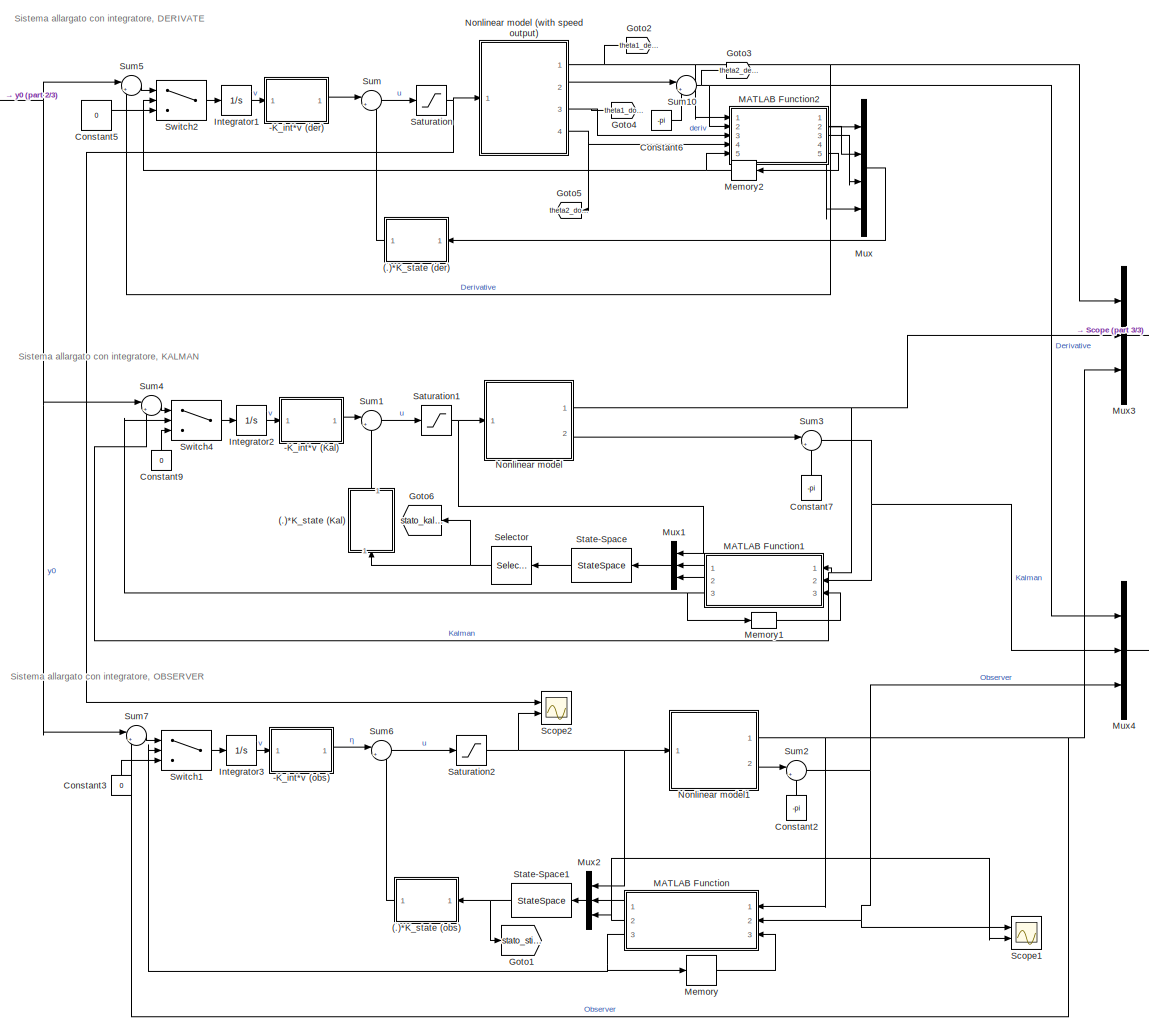
[diagram: root canvas - part 1/3, center side, full height]
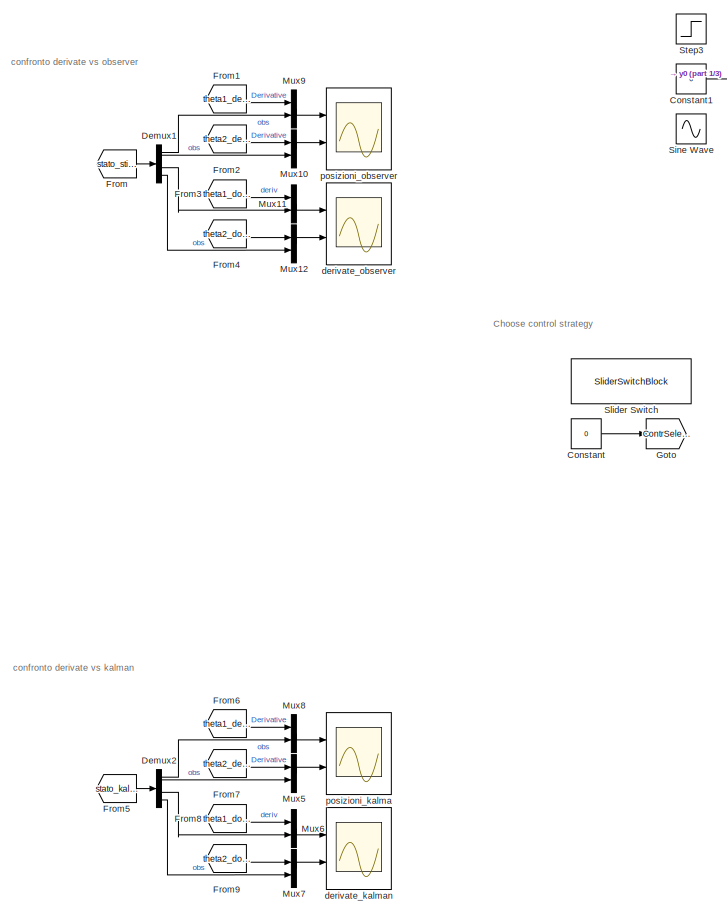
[diagram: root canvas - part 2/3, left side, full height]
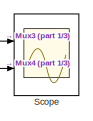
[diagram: root canvas - part 3/3, middle right region]
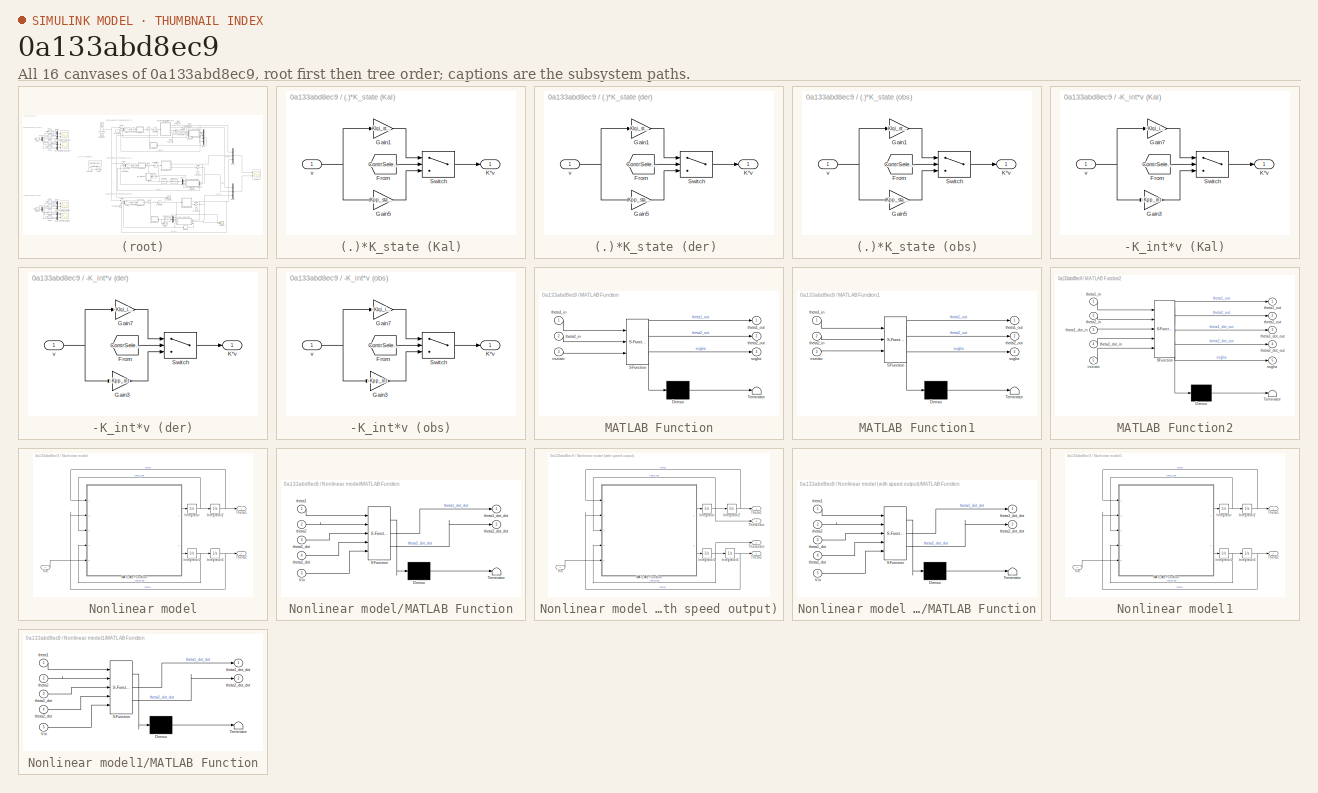
[diagram: thumbnail index - all 16 canvases of the model, root first then tree order]
MODEL slx_0a133abd8ec9
KIND model
CONFIG AbsTol = auto
CONFIG EnableMultiTasking = off
CONFIG FixedStep = 0.002
CONFIG MaxStep = auto
CONFIG MinStep = auto
CONFIG RelTol = 1e-3
CONFIG SampleTimeConstraint = Unconstrained
CONFIG Solver = FixedStepAuto
CONFIG SolverName = FixedStepAuto
CONFIG StartTime = 0.0
CONFIG StopTime = 10.0
BLOCK [SubSystem] (.)*K_state (Kal)
  Ports = [1, 1]
  RequestExecContextInheritance = off
BLOCK [From] (.)*K_state (Kal)/From
  GotoTag = ContrSelector
  TagVisibility = global
BLOCK [Gain] (.)*K_state (Kal)/Gain1
  Gain = Klqi_state
  Multiplication = Matrix(K*u)
  OutDataTypeStr = Inherit: Inherit via internal rule
  ParamDataTypeStr = Inherit: Inherit via internal rule
  SaturateOnIntegerOverflow = off
BLOCK [Gain] (.)*K_state (Kal)/Gain5
  Gain = Kpp_state
  Multiplication = Matrix(K*u)
  OutDataTypeStr = Inherit: Inherit via internal rule
  ParamDataTypeStr = Inherit: Inherit via internal rule
  SaturateOnIntegerOverflow = off
BLOCK [Outport] (.)*K_state (Kal)/K*v
  IconDisplay = Port number
BLOCK [Switch] (.)*K_state (Kal)/Switch
  Criteria = u2 > Threshold
  InputSameDT = off
  SaturateOnIntegerOverflow = off
  Threshold = 0.5
BLOCK [Inport] (.)*K_state (Kal)/v
  IconDisplay = Port number
BLOCK [SubSystem] (.)*K_state (der) 
  Ports = [1, 1]
  RequestExecContextInheritance = off
BLOCK [From] (.)*K_state (der) /From
  GotoTag = ContrSelector
  TagVisibility = global
BLOCK [Gain] (.)*K_state (der) /Gain1
  Gain = Klqi_state
  Multiplication = Matrix(K*u)
  OutDataTypeStr = Inherit: Inherit via internal rule
  ParamDataTypeStr = Inherit: Inherit via internal rule
  SaturateOnIntegerOverflow = off
BLOCK [Gain] (.)*K_state (der) /Gain5
  Gain = Kpp_state
  Multiplication = Matrix(K*u)
  OutDataTypeStr = Inherit: Inherit via internal rule
  ParamDataTypeStr = Inherit: Inherit via internal rule
  SaturateOnIntegerOverflow = off
BLOCK [Outport] (.)*K_state (der) /K*v
  IconDisplay = Port number
BLOCK [Switch] (.)*K_state (der) /Switch
  Criteria = u2 > Threshold
  InputSameDT = off
  SaturateOnIntegerOverflow = off
  Threshold = 0.5
BLOCK [Inport] (.)*K_state (der) /v
  IconDisplay = Port number
BLOCK [SubSystem] (.)*K_state (obs)
  Ports = [1, 1]
  RequestExecContextInheritance = off
BLOCK [From] (.)*K_state (obs)/From
  GotoTag = ContrSelector
  TagVisibility = global
BLOCK [Gain] (.)*K_state (obs)/Gain1
  Gain = Klqi_state
  Multiplication = Matrix(K*u)
  OutDataTypeStr = Inherit: Inherit via internal rule
  ParamDataTypeStr = Inherit: Inherit via internal rule
  SaturateOnIntegerOverflow = off
BLOCK [Gain] (.)*K_state (obs)/Gain5
  Gain = Kpp_state
  Multiplication = Matrix(K*u)
  OutDataTypeStr = Inherit: Inherit via internal rule
  ParamDataTypeStr = Inherit: Inherit via internal rule
  SaturateOnIntegerOverflow = off
BLOCK [Outport] (.)*K_state (obs)/K*v
  IconDisplay = Port number
BLOCK [Switch] (.)*K_state (obs)/Switch
  Criteria = u2 > Threshold
  InputSameDT = off
  SaturateOnIntegerOverflow = off
  Threshold = 0.5
BLOCK [Inport] (.)*K_state (obs)/v
  IconDisplay = Port number
BLOCK [SubSystem] -K_int*v (Kal)
  Ports = [1, 1]
  RequestExecContextInheritance = off
BLOCK [From] -K_int*v (Kal)/From
  GotoTag = ContrSelector
  TagVisibility = global
BLOCK [Gain] -K_int*v (Kal)/Gain3
  Gain = -Kpp_int
  Multiplication = Matrix(K*u)
  OutDataTypeStr = Inherit: Inherit via internal rule
  ParamDataTypeStr = Inherit: Inherit via internal rule
  SaturateOnIntegerOverflow = off
BLOCK [Gain] -K_int*v (Kal)/Gain7
  Gain = -Klqi_int
  Multiplication = Matrix(K*u)
  OutDataTypeStr = Inherit: Inherit via internal rule
  ParamDataTypeStr = Inherit: Inherit via internal rule
  SaturateOnIntegerOverflow = off
BLOCK [Outport] -K_int*v (Kal)/K*v
  IconDisplay = Port number
BLOCK [Switch] -K_int*v (Kal)/Switch
  Criteria = u2 > Threshold
  InputSameDT = off
  SaturateOnIntegerOverflow = off
  Threshold = 0.5
BLOCK [Inport] -K_int*v (Kal)/v
  IconDisplay = Port number
BLOCK [SubSystem] -K_int*v (der)
  Ports = [1, 1]
  RequestExecContextInheritance = off
BLOCK [From] -K_int*v (der)/From
  GotoTag = ContrSelector
  TagVisibility = global
BLOCK [Gain] -K_int*v (der)/Gain3
  Gain = -Kpp_int
  Multiplication = Matrix(K*u)
  OutDataTypeStr = Inherit: Inherit via internal rule
  ParamDataTypeStr = Inherit: Inherit via internal rule
  SaturateOnIntegerOverflow = off
BLOCK [Gain] -K_int*v (der)/Gain7
  Gain = -Klqi_int
  Multiplication = Matrix(K*u)
  OutDataTypeStr = Inherit: Inherit via internal rule
  ParamDataTypeStr = Inherit: Inherit via internal rule
  SaturateOnIntegerOverflow = off
BLOCK [Outport] -K_int*v (der)/K*v
  IconDisplay = Port number
BLOCK [Switch] -K_int*v (der)/Switch
  Criteria = u2 > Threshold
  InputSameDT = off
  SaturateOnIntegerOverflow = off
  Threshold = 0.5
BLOCK [Inport] -K_int*v (der)/v
  IconDisplay = Port number
BLOCK [SubSystem] -K_int*v (obs)
  Ports = [1, 1]
  RequestExecContextInheritance = off
BLOCK [From] -K_int*v (obs)/From
  GotoTag = ContrSelector
  TagVisibility = global
BLOCK [Gain] -K_int*v (obs)/Gain3
  Gain = -Kpp_int
  Multiplication = Matrix(K*u)
  OutDataTypeStr = Inherit: Inherit via internal rule
  ParamDataTypeStr = Inherit: Inherit via internal rule
  SaturateOnIntegerOverflow = off
BLOCK [Gain] -K_int*v (obs)/Gain7
  Gain = -Klqi_int
  Multiplication = Matrix(K*u)
  OutDataTypeStr = Inherit: Inherit via internal rule
  ParamDataTypeStr = Inherit: Inherit via internal rule
  SaturateOnIntegerOverflow = off
BLOCK [Outport] -K_int*v (obs)/K*v
  IconDisplay = Port number
BLOCK [Switch] -K_int*v (obs)/Switch
  Criteria = u2 > Threshold
  InputSameDT = off
  SaturateOnIntegerOverflow = off
  Threshold = 0.5
BLOCK [Inport] -K_int*v (obs)/v
  IconDisplay = Port number
BLOCK [Constant] Constant
  Value = 0
BLOCK [Constant] Constant1
  Value = 0
BLOCK [Constant] Constant2
  Value = -pi
BLOCK [Constant] Constant3
  Value = 0
BLOCK [Constant] Constant5
  Value = 0
BLOCK [Constant] Constant6
  Value = -pi
BLOCK [Constant] Constant7
  Value = -pi
BLOCK [Constant] Constant9
  Value = 0
BLOCK [Demux] Demux1
  DisplayOption = bar
  Ports = [1, 4]
BLOCK [Demux] Demux2
  DisplayOption = bar
  Ports = [1, 4]
BLOCK [From] From
  GotoTag = stato_stimato
BLOCK [From] From1
  GotoTag = theta1_derivate
BLOCK [From] From2
  GotoTag = theta2_derivative
BLOCK [From] From3
  GotoTag = theta1_dot_derivative
BLOCK [From] From4
  GotoTag = theta2_dot_derivative
BLOCK [From] From5
  GotoTag = stato_kalman
BLOCK [From] From6
  GotoTag = theta1_derivate
BLOCK [From] From7
  GotoTag = theta2_derivative
BLOCK [From] From8
  GotoTag = theta1_dot_derivative
BLOCK [From] From9
  GotoTag = theta2_dot_derivative
BLOCK [Goto] Goto
  GotoTag = ContrSelector
  TagVisibility = global
BLOCK [Goto] Goto1
  GotoTag = stato_stimato
BLOCK [Goto] Goto2
  GotoTag = theta1_derivate
BLOCK [Goto] Goto3
  GotoTag = theta2_derivative
BLOCK [Goto] Goto4
  GotoTag = theta1_dot_derivative
BLOCK [Goto] Goto5
  GotoTag = theta2_dot_derivative
BLOCK [Goto] Goto6
  GotoTag = stato_kalman
BLOCK [Integrator] Integrator1
  Ports = [1, 1]
BLOCK [Integrator] Integrator2
  Ports = [1, 1]
BLOCK [Integrator] Integrator3
  Ports = [1, 1]
BLOCK [SubSystem] MATLAB Function
  ErrorFcn = Stateflow.Translate.translate
  PermitHierarchicalResolution = ExplicitOnly
  Ports = [3, 3]
  RequestExecContextInheritance = off
  SFBlockType = MATLAB Function
  TreatAsAtomicUnit = on
BLOCK [Demux] MATLAB Function/ Demux 
  Outputs = 1
  Ports = [1, 1]
BLOCK [S-Function] MATLAB Function/ SFunction 
  EnableBusSupport = on
  FunctionName = sf_sfun
  PortCounts = [3 4]
  Ports = [3, 4]
  SFcnIsStateOwnerBlock = off
  SFunctionDeploymentMode = off
  Tag = Stateflow S-Function 3
BLOCK [Terminator] MATLAB Function/ Terminator 
BLOCK [Inport] MATLAB Function/iniziato
  IconDisplay = Port number
  Port = 3
BLOCK [Outport] MATLAB Function/soglia
  IconDisplay = Port number
  Port = 3
BLOCK [Inport] MATLAB Function/theta1_in
  IconDisplay = Port number
BLOCK [Outport] MATLAB Function/theta1_out
  IconDisplay = Port number
BLOCK [Inport] MATLAB Function/theta2_in
  IconDisplay = Port number
  Port = 2
BLOCK [Outport] MATLAB Function/theta2_out
  IconDisplay = Port number
  Port = 2
BLOCK [SubSystem] MATLAB Function1
  ErrorFcn = Stateflow.Translate.translate
  PermitHierarchicalResolution = ExplicitOnly
  Ports = [3, 3]
  RequestExecContextInheritance = off
  SFBlockType = MATLAB Function
  TreatAsAtomicUnit = on
BLOCK [Demux] MATLAB Function1/ Demux 
  Outputs = 1
  Ports = [1, 1]
BLOCK [S-Function] MATLAB Function1/ SFunction 
  EnableBusSupport = on
  FunctionName = sf_sfun
  PortCounts = [3 4]
  Ports = [3, 4]
  SFcnIsStateOwnerBlock = off
  SFunctionDeploymentMode = off
  Tag = Stateflow S-Function 5
BLOCK [Terminator] MATLAB Function1/ Terminator 
BLOCK [Inport] MATLAB Function1/iniziato
  IconDisplay = Port number
  Port = 3
BLOCK [Outport] MATLAB Function1/soglia
  IconDisplay = Port number
  Port = 3
BLOCK [Inport] MATLAB Function1/theta1_in
  IconDisplay = Port number
BLOCK [Outport] MATLAB Function1/theta1_out
  IconDisplay = Port number
BLOCK [Inport] MATLAB Function1/theta2_in
  IconDisplay = Port number
  Port = 2
BLOCK [Outport] MATLAB Function1/theta2_out
  IconDisplay = Port number
  Port = 2
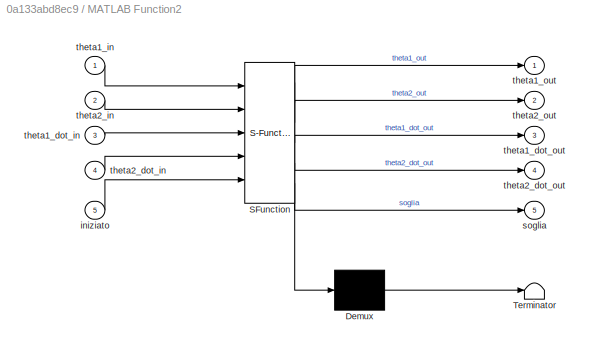
BLOCK [SubSystem] MATLAB Function2
  ErrorFcn = Stateflow.Translate.translate
  PermitHierarchicalResolution = ExplicitOnly
  Ports = [5, 5]
  RequestExecContextInheritance = off
  SFBlockType = MATLAB Function
  TreatAsAtomicUnit = on
BLOCK [Demux] MATLAB Function2/ Demux 
  Outputs = 1
  Ports = [1, 1]
BLOCK [S-Function] MATLAB Function2/ SFunction 
  EnableBusSupport = on
  FunctionName = sf_sfun
  PortCounts = [5 6]
  Ports = [5, 6]
  SFcnIsStateOwnerBlock = off
  SFunctionDeploymentMode = off
  Tag = Stateflow S-Function 6
BLOCK [Terminator] MATLAB Function2/ Terminator 
BLOCK [Inport] MATLAB Function2/iniziato
  IconDisplay = Port number
  Port = 5
BLOCK [Outport] MATLAB Function2/soglia
  IconDisplay = Port number
  Port = 5
BLOCK [Inport] MATLAB Function2/theta1_dot_in
  IconDisplay = Port number
  Port = 3
BLOCK [Outport] MATLAB Function2/theta1_dot_out
  IconDisplay = Port number
  Port = 3
BLOCK [Inport] MATLAB Function2/theta1_in
  IconDisplay = Port number
BLOCK [Outport] MATLAB Function2/theta1_out
  IconDisplay = Port number
BLOCK [Inport] MATLAB Function2/theta2_dot_in
  IconDisplay = Port number
  Port = 4
BLOCK [Outport] MATLAB Function2/theta2_dot_out
  IconDisplay = Port number
  Port = 4
BLOCK [Inport] MATLAB Function2/theta2_in
  IconDisplay = Port number
  Port = 2
BLOCK [Outport] MATLAB Function2/theta2_out
  IconDisplay = Port number
  Port = 2
BLOCK [Memory] Memory
BLOCK [Memory] Memory1
  InitialCondition = false
BLOCK [Memory] Memory2
BLOCK [Mux] Mux
  DisplayOption = bar
  Ports = [4, 1]
BLOCK [Mux] Mux1
  DisplayOption = bar
  Inputs = 3
  Ports = [3, 1]
BLOCK [Mux] Mux10
  DisplayOption = bar
  Inputs = 2
  Ports = [2, 1]
BLOCK [Mux] Mux11
  DisplayOption = bar
  Inputs = 2
  Ports = [2, 1]
BLOCK [Mux] Mux12
  DisplayOption = bar
  Inputs = 2
  Ports = [2, 1]
BLOCK [Mux] Mux2
  DisplayOption = bar
  Inputs = 3
  Ports = [3, 1]
BLOCK [Mux] Mux3
  DisplayOption = bar
  Inputs = 3
  Ports = [3, 1]
BLOCK [Mux] Mux4
  DisplayOption = bar
  Inputs = 3
  Ports = [3, 1]
BLOCK [Mux] Mux5
  DisplayOption = bar
  Inputs = 2
  Ports = [2, 1]
BLOCK [Mux] Mux6
  DisplayOption = bar
  Inputs = 2
  Ports = [2, 1]
BLOCK [Mux] Mux7
  DisplayOption = bar
  Inputs = 2
  Ports = [2, 1]
BLOCK [Mux] Mux8
  DisplayOption = bar
  Inputs = 2
  Ports = [2, 1]
BLOCK [Mux] Mux9
  DisplayOption = bar
  Inputs = 2
  Ports = [2, 1]
BLOCK [SubSystem] Nonlinear model
  Ports = [1, 2]
  RequestExecContextInheritance = off
BLOCK [SubSystem] Nonlinear model (with speed output)
  Ports = [1, 4]
  RequestExecContextInheritance = off
BLOCK [Integrator] Nonlinear model (with speed output)/Integrator
  InitialCondition = 0.05
  Ports = [1, 1]
BLOCK [Integrator] Nonlinear model (with speed output)/Integrator1
  InitialCondition = 0.05
  Ports = [1, 1]
BLOCK [Integrator] Nonlinear model (with speed output)/Integrator2
  Ports = [1, 1]
BLOCK [Integrator] Nonlinear model (with speed output)/Integrator3
  InitialCondition = pi
  Ports = [1, 1]
BLOCK [SubSystem] Nonlinear model (with speed output)/MATLAB Function
  ErrorFcn = Stateflow.Translate.translate
  PermitHierarchicalResolution = ExplicitOnly
  Ports = [5, 2]
  RequestExecContextInheritance = off
  SFBlockType = MATLAB Function
  TreatAsAtomicUnit = on
BLOCK [Demux] Nonlinear model (with speed output)/MATLAB Function/ Demux 
  DisplayOption = bar
  Outputs = 1
  Ports = [1, 1]
BLOCK [S-Function] Nonlinear model (with speed output)/MATLAB Function/ SFunction 
  EnableBusSupport = on
  FunctionName = sf_sfun
  Parameters = Pars
  PortCounts = [5 3]
  Ports = [5, 3]
  SFcnIsStateOwnerBlock = off
  SFunctionDeploymentMode = off
  Tag = Stateflow S-Function 4
BLOCK [Terminator] Nonlinear model (with speed output)/MATLAB Function/ Terminator 
BLOCK [Inport] Nonlinear model (with speed output)/MATLAB Function/Vin
  IconDisplay = Port number
  Port = 5
BLOCK [Inport] Nonlinear model (with speed output)/MATLAB Function/theta1
  IconDisplay = Port number
BLOCK [Inport] Nonlinear model (with speed output)/MATLAB Function/theta1_dot
  IconDisplay = Port number
  Port = 3
BLOCK [Outport] Nonlinear model (with speed output)/MATLAB Function/theta1_dot_dot
  IconDisplay = Port number
BLOCK [Inport] Nonlinear model (with speed output)/MATLAB Function/theta2
  IconDisplay = Port number
  Port = 2
BLOCK [Inport] Nonlinear model (with speed output)/MATLAB Function/theta2_dot
  IconDisplay = Port number
  Port = 4
BLOCK [Outport] Nonlinear model (with speed output)/MATLAB Function/theta2_dot_dot
  IconDisplay = Port number
  Port = 2
BLOCK [Outport] Nonlinear model (with speed output)/Theta1
  IconDisplay = Port number
BLOCK [Outport] Nonlinear model (with speed output)/Theta1dot
  IconDisplay = Port number
  Port = 3
BLOCK [Outport] Nonlinear model (with speed output)/Theta2
  IconDisplay = Port number
  Port = 2
BLOCK [Outport] Nonlinear model (with speed output)/Theta2dot
  IconDisplay = Port number
  Port = 4
BLOCK [Inport] Nonlinear model (with speed output)/Vin
  IconDisplay = Port number
BLOCK [Integrator] Nonlinear model/Integrator
  InitialCondition = 0.05
  Ports = [1, 1]
BLOCK [Integrator] Nonlinear model/Integrator1
  InitialCondition = 0.05
  Ports = [1, 1]
BLOCK [Integrator] Nonlinear model/Integrator2
  Ports = [1, 1]
BLOCK [Integrator] Nonlinear model/Integrator3
  InitialCondition = pi
  Ports = [1, 1]
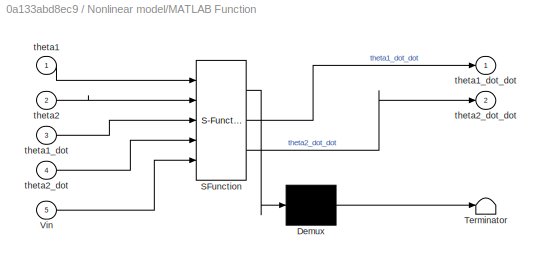
BLOCK [SubSystem] Nonlinear model/MATLAB Function
  ErrorFcn = Stateflow.Translate.translate
  PermitHierarchicalResolution = ExplicitOnly
  Ports = [5, 2]
  RequestExecContextInheritance = off
  SFBlockType = MATLAB Function
  TreatAsAtomicUnit = on
BLOCK [Demux] Nonlinear model/MATLAB Function/ Demux 
  DisplayOption = bar
  Outputs = 1
  Ports = [1, 1]
BLOCK [S-Function] Nonlinear model/MATLAB Function/ SFunction 
  EnableBusSupport = on
  FunctionName = sf_sfun
  Parameters = Pars
  PortCounts = [5 3]
  Ports = [5, 3]
  SFcnIsStateOwnerBlock = off
  SFunctionDeploymentMode = off
  Tag = Stateflow S-Function 2
BLOCK [Terminator] Nonlinear model/MATLAB Function/ Terminator 
BLOCK [Inport] Nonlinear model/MATLAB Function/Vin
  IconDisplay = Port number
  Port = 5
BLOCK [Inport] Nonlinear model/MATLAB Function/theta1
  IconDisplay = Port number
BLOCK [Inport] Nonlinear model/MATLAB Function/theta1_dot
  IconDisplay = Port number
  Port = 3
BLOCK [Outport] Nonlinear model/MATLAB Function/theta1_dot_dot
  IconDisplay = Port number
BLOCK [Inport] Nonlinear model/MATLAB Function/theta2
  IconDisplay = Port number
  Port = 2
BLOCK [Inport] Nonlinear model/MATLAB Function/theta2_dot
  IconDisplay = Port number
  Port = 4
BLOCK [Outport] Nonlinear model/MATLAB Function/theta2_dot_dot
  IconDisplay = Port number
  Port = 2
BLOCK [Outport] Nonlinear model/Theta1
  IconDisplay = Port number
BLOCK [Outport] Nonlinear model/Theta2
  IconDisplay = Port number
  Port = 2
BLOCK [Inport] Nonlinear model/Vin
  IconDisplay = Port number
BLOCK [SubSystem] Nonlinear model1
  Ports = [1, 2]
  RequestExecContextInheritance = off
BLOCK [Integrator] Nonlinear model1/Integrator
  InitialCondition = 0.05
  Ports = [1, 1]
BLOCK [Integrator] Nonlinear model1/Integrator1
  InitialCondition = 0.05
  Ports = [1, 1]
BLOCK [Integrator] Nonlinear model1/Integrator2
  Ports = [1, 1]
BLOCK [Integrator] Nonlinear model1/Integrator3
  InitialCondition = pi
  Ports = [1, 1]
BLOCK [SubSystem] Nonlinear model1/MATLAB Function
  ErrorFcn = Stateflow.Translate.translate
  PermitHierarchicalResolution = ExplicitOnly
  Ports = [5, 2]
  RequestExecContextInheritance = off
  SFBlockType = MATLAB Function
  TreatAsAtomicUnit = on
BLOCK [Demux] Nonlinear model1/MATLAB Function/ Demux 
  DisplayOption = bar
  Outputs = 1
  Ports = [1, 1]
BLOCK [S-Function] Nonlinear model1/MATLAB Function/ SFunction 
  EnableBusSupport = on
  FunctionName = sf_sfun
  Parameters = Pars
  PortCounts = [5 3]
  Ports = [5, 3]
  SFcnIsStateOwnerBlock = off
  SFunctionDeploymentMode = off
  Tag = Stateflow S-Function 1
BLOCK [Terminator] Nonlinear model1/MATLAB Function/ Terminator 
BLOCK [Inport] Nonlinear model1/MATLAB Function/Vin
  IconDisplay = Port number
  Port = 5
BLOCK [Inport] Nonlinear model1/MATLAB Function/theta1
  IconDisplay = Port number
BLOCK [Inport] Nonlinear model1/MATLAB Function/theta1_dot
  IconDisplay = Port number
  Port = 3
BLOCK [Outport] Nonlinear model1/MATLAB Function/theta1_dot_dot
  IconDisplay = Port number
BLOCK [Inport] Nonlinear model1/MATLAB Function/theta2
  IconDisplay = Port number
  Port = 2
BLOCK [Inport] Nonlinear model1/MATLAB Function/theta2_dot
  IconDisplay = Port number
  Port = 4
BLOCK [Outport] Nonlinear model1/MATLAB Function/theta2_dot_dot
  IconDisplay = Port number
  Port = 2
BLOCK [Outport] Nonlinear model1/Theta1
  IconDisplay = Port number
BLOCK [Outport] Nonlinear model1/Theta2
  IconDisplay = Port number
  Port = 2
BLOCK [Inport] Nonlinear model1/Vin
  IconDisplay = Port number
BLOCK [Saturate] Saturation
  InputPortMap = u0
  LowerLimit = -10
  Ports = [1, 1]
  UpperLimit = 10
BLOCK [Saturate] Saturation1
  InputPortMap = u0
  LowerLimit = -10
  Ports = [1, 1]
  UpperLimit = 10
BLOCK [Saturate] Saturation2
  InputPortMap = u0
  LowerLimit = -10
  Ports = [1, 1]
  UpperLimit = 10
BLOCK [Scope] Scope
  Floating = off
  NumInputPorts = 2
  Ports = [2]
  ScopeSpecificationString = Simulink.scopes.TimeScopeBlockCfg('CurrentConfiguration', extmgr.ConfigurationSet(extmgr.Configuration('Core','General UI',true),extmgr.Configuration('Core','Source UI',true),extmgr.Configuration('Sources','WiredSimulink',true),extmgr.Configuration('Visuals','Time Domain',true,'SerializedDisplays',{struct('MinYLimReal','-2.03061','MaxYLimReal','1.80753','YLabelReal','','MinYLimMag','0.00000','MaxY...<+2211ch>
BLOCK [Scope] Scope1
  Floating = off
  NumInputPorts = 2
  Ports = [2]
  ScopeSpecificationString = Simulink.scopes.TimeScopeBlockCfg('CurrentConfiguration', extmgr.ConfigurationSet(extmgr.Configuration('Core','General UI',true),extmgr.Configuration('Core','Source UI',true),extmgr.Configuration('Sources','WiredSimulink',true,'DataLoggingVariableName','ScopeData5'),extmgr.Configuration('Visuals','Time Domain',true,'SerializedDisplays',{struct('MinYLimReal','-0.06447','MaxYLimReal','0.06888','YLab...<+2103ch>
BLOCK [Scope] Scope2
  Floating = off
  NumInputPorts = 2
  Ports = [2]
  ScopeSpecificationString = Simulink.scopes.TimeScopeBlockCfg('CurrentConfiguration', extmgr.ConfigurationSet(extmgr.Configuration('Core','General UI',true),extmgr.Configuration('Core','Source UI',true),extmgr.Configuration('Sources','WiredSimulink',true,'DataLoggingVariableName','ScopeData1'),extmgr.Configuration('Visuals','Time Domain',true,'SerializedDisplays',{struct('MinYLimReal','-0.62212','MaxYLimReal','0.14207','YLab...<+1427ch>
BLOCK [Selector] Selector
  IndexOptions = Index vector (dialog)
  Indices = [3,4,5,6]
  InputPortWidth = 6
  OutputSizes = 1
  Ports = [1, 1]
BLOCK [Sin] Sine Wave
  Ports = [0, 1]
  SampleTime = 0
BLOCK [SliderSwitchBlock] Slider Switch
  LabelPosition = Hide
BLOCK [StateSpace] State-Space
  A = kalmf.A
  B = kalmf.B
  C = kalmf.C
  D = kalmf.D
  InitialCondition = [0,0,0,0]
  Ports = [1, 1]
BLOCK [StateSpace] State-Space1
  A = Ao
  B = Bo
  C = Co
  D = zeros(4,3)
  InitialCondition = [0,0,0,0]
  Ports = [1, 1]
BLOCK [Step] Step3
  After = 5
  SampleTime = 0
BLOCK [Sum] Sum
  IconShape = round
  InputSameDT = off
  Inputs = |+-
  OutDataTypeStr = Inherit: Inherit via internal rule
  Ports = [2, 1]
  SaturateOnIntegerOverflow = off
BLOCK [Sum] Sum1
  IconShape = round
  InputSameDT = off
  Inputs = |+-
  OutDataTypeStr = Inherit: Inherit via internal rule
  Ports = [2, 1]
  SaturateOnIntegerOverflow = off
BLOCK [Sum] Sum10
  IconShape = round
  InputSameDT = off
  Inputs = |++
  OutDataTypeStr = Inherit: Inherit via internal rule
  Ports = [2, 1]
  SaturateOnIntegerOverflow = off
BLOCK [Sum] Sum2
  IconShape = round
  InputSameDT = off
  Inputs = |++
  OutDataTypeStr = Inherit: Inherit via internal rule
  Ports = [2, 1]
  SaturateOnIntegerOverflow = off
BLOCK [Sum] Sum3
  IconShape = round
  InputSameDT = off
  Inputs = |++
  OutDataTypeStr = Inherit: Inherit via internal rule
  Ports = [2, 1]
  SaturateOnIntegerOverflow = off
BLOCK [Sum] Sum4
  IconShape = round
  InputSameDT = off
  Inputs = |+-
  OutDataTypeStr = Inherit: Inherit via internal rule
  Ports = [2, 1]
  SaturateOnIntegerOverflow = off
BLOCK [Sum] Sum5
  IconShape = round
  InputSameDT = off
  Inputs = |+-
  OutDataTypeStr = Inherit: Inherit via internal rule
  Ports = [2, 1]
  SaturateOnIntegerOverflow = off
BLOCK [Sum] Sum6
  IconShape = round
  InputSameDT = off
  Inputs = |+-
  OutDataTypeStr = Inherit: Inherit via internal rule
  Ports = [2, 1]
  SaturateOnIntegerOverflow = off
BLOCK [Sum] Sum7
  IconShape = round
  InputSameDT = off
  Inputs = |+-
  OutDataTypeStr = Inherit: Inherit via internal rule
  Ports = [2, 1]
  SaturateOnIntegerOverflow = off
BLOCK [Switch] Switch1
  Criteria = u2 > Threshold
  InputSameDT = off
  SaturateOnIntegerOverflow = off
  Threshold = 1
BLOCK [Switch] Switch2
  Criteria = u2 > Threshold
  InputSameDT = off
  SaturateOnIntegerOverflow = off
  Threshold = 1
BLOCK [Switch] Switch4
  Criteria = u2 > Threshold
  InputSameDT = off
  SaturateOnIntegerOverflow = off
  Threshold = 1
BLOCK [Scope] derivate_kalman
  Floating = off
  NumInputPorts = 2
  Ports = [2]
  ScopeSpecificationString = Simulink.scopes.TimeScopeBlockCfg('CurrentConfiguration', extmgr.ConfigurationSet(extmgr.Configuration('Core','General UI',true),extmgr.Configuration('Core','Source UI',true),extmgr.Configuration('Sources','WiredSimulink',true,'DataLoggingVariableName','ScopeData3'),extmgr.Configuration('Visuals','Time Domain',true,'SerializedDisplays',{struct('MinYLimReal','-0.43289','MaxYLimReal','0.20845','YLab...<+2234ch>
BLOCK [Scope] derivate_observer 
  Floating = off
  NumInputPorts = 2
  Ports = [2]
  ScopeSpecificationString = Simulink.scopes.TimeScopeBlockCfg('CurrentConfiguration', extmgr.ConfigurationSet(extmgr.Configuration('Core','General UI',true),extmgr.Configuration('Core','Source UI',true),extmgr.Configuration('Sources','WiredSimulink',true,'DataLoggingVariableName','ScopeData1'),extmgr.Configuration('Visuals','Time Domain',true,'SerializedDisplays',{struct('MinYLimReal','-0.37506','MaxYLimReal','0.18692','YLab...<+2235ch>
BLOCK [Scope] posizioni_kalma
  Floating = off
  NumInputPorts = 2
  Ports = [2]
  ScopeSpecificationString = Simulink.scopes.TimeScopeBlockCfg('CurrentConfiguration', extmgr.ConfigurationSet(extmgr.Configuration('Core','General UI',true),extmgr.Configuration('Core','Source UI',true),extmgr.Configuration('Sources','WiredSimulink',true,'DataLoggingVariableName','ScopeData4'),extmgr.Configuration('Visuals','Time Domain',true,'SerializedDisplays',{struct('MinYLimReal','-0.08309','MaxYLimReal','0.03199','YLab...<+2230ch>
BLOCK [Scope] posizioni_observer
  Floating = off
  NumInputPorts = 2
  Ports = [2]
  ScopeSpecificationString = Simulink.scopes.TimeScopeBlockCfg('CurrentConfiguration', extmgr.ConfigurationSet(extmgr.Configuration('Core','General UI',true),extmgr.Configuration('Core','Source UI',true),extmgr.Configuration('Sources','WiredSimulink',true,'DataLoggingVariableName','ScopeData2'),extmgr.Configuration('Visuals','Time Domain',true,'SerializedDisplays',{struct('MinYLimReal','-0.0578','MaxYLimReal','0.02121','YLabe...<+2230ch>
ANNOTATION (root): Choose control strategy
ANNOTATION (root): Sistema allargato con integratore, DERIVATE
ANNOTATION (root): Sistema allargato con integratore, KALMAN
ANNOTATION (root): Sistema allargato con integratore, OBSERVER
ANNOTATION (root): confronto derivate vs kalman
ANNOTATION (root): confronto derivate vs observer
LINE (.)*K_state (Kal)/From:1 -> (.)*K_state (Kal)/Switch:2
LINE (.)*K_state (Kal)/Gain1:1 -> (.)*K_state (Kal)/Switch:1
LINE (.)*K_state (Kal)/Gain5:1 -> (.)*K_state (Kal)/Switch:3
LINE (.)*K_state (Kal)/Switch:1 -> (.)*K_state (Kal)/K*v:1
NET (.)*K_state (Kal)/v:1 -> (.)*K_state (Kal)/Gain1:1, (.)*K_state (Kal)/Gain5:1
LINE (.)*K_state (Kal):1 -> Sum1:2
LINE (.)*K_state (der) /From:1 -> (.)*K_state (der) /Switch:2
LINE (.)*K_state (der) /Gain1:1 -> (.)*K_state (der) /Switch:1
LINE (.)*K_state (der) /Gain5:1 -> (.)*K_state (der) /Switch:3
LINE (.)*K_state (der) /Switch:1 -> (.)*K_state (der) /K*v:1
NET (.)*K_state (der) /v:1 -> (.)*K_state (der) /Gain1:1, (.)*K_state (der) /Gain5:1
LINE (.)*K_state (der) :1 -> Sum:2
LINE (.)*K_state (obs)/From:1 -> (.)*K_state (obs)/Switch:2
LINE (.)*K_state (obs)/Gain1:1 -> (.)*K_state (obs)/Switch:1
LINE (.)*K_state (obs)/Gain5:1 -> (.)*K_state (obs)/Switch:3
LINE (.)*K_state (obs)/Switch:1 -> (.)*K_state (obs)/K*v:1
NET (.)*K_state (obs)/v:1 -> (.)*K_state (obs)/Gain1:1, (.)*K_state (obs)/Gain5:1
LINE (.)*K_state (obs):1 -> Sum6:2
LINE -K_int*v (Kal)/From:1 -> -K_int*v (Kal)/Switch:2
LINE -K_int*v (Kal)/Gain3:1 -> -K_int*v (Kal)/Switch:3
LINE -K_int*v (Kal)/Gain7:1 -> -K_int*v (Kal)/Switch:1
LINE -K_int*v (Kal)/Switch:1 -> -K_int*v (Kal)/K*v:1
NET -K_int*v (Kal)/v:1 -> -K_int*v (Kal)/Gain3:1, -K_int*v (Kal)/Gain7:1
LINE -K_int*v (Kal):1 -> Sum1:1
LINE -K_int*v (der)/From:1 -> -K_int*v (der)/Switch:2
LINE -K_int*v (der)/Gain3:1 -> -K_int*v (der)/Switch:3
LINE -K_int*v (der)/Gain7:1 -> -K_int*v (der)/Switch:1
LINE -K_int*v (der)/Switch:1 -> -K_int*v (der)/K*v:1
NET -K_int*v (der)/v:1 -> -K_int*v (der)/Gain3:1, -K_int*v (der)/Gain7:1
LINE -K_int*v (der):1 -> Sum:1
LINE -K_int*v (obs)/From:1 -> -K_int*v (obs)/Switch:2
LINE -K_int*v (obs)/Gain3:1 -> -K_int*v (obs)/Switch:3
LINE -K_int*v (obs)/Gain7:1 -> -K_int*v (obs)/Switch:1
LINE -K_int*v (obs)/Switch:1 -> -K_int*v (obs)/K*v:1
NET -K_int*v (obs)/v:1 -> -K_int*v (obs)/Gain3:1, -K_int*v (obs)/Gain7:1
LINE -K_int*v (obs):1 -> Sum6:1
NET Constant1:1 -> Sum4:1, Sum5:1, Sum7:1
LINE Constant2:1 -> Sum2:2
LINE Constant3:1 -> Switch1:3
LINE Constant5:1 -> Switch2:3
LINE Constant6:1 -> Sum10:2
LINE Constant7:1 -> Sum3:2
LINE Constant9:1 -> Switch4:3
LINE Constant:1 -> Goto:1
LINE Demux1:1 -> Mux9:2
LINE Demux1:2 -> Mux10:2
LINE Demux1:3 -> Mux11:2
LINE Demux1:4 -> Mux12:2
LINE Demux2:1 -> Mux8:2
LINE Demux2:2 -> Mux5:2
LINE Demux2:3 -> Mux6:2
LINE Demux2:4 -> Mux7:2
LINE From1:1 -> Mux9:1
LINE From2:1 -> Mux10:1
LINE From3:1 -> Mux11:1
LINE From4:1 -> Mux12:1
LINE From5:1 -> Demux2:1
LINE From6:1 -> Mux8:1
LINE From7:1 -> Mux5:1
LINE From8:1 -> Mux6:1
LINE From9:1 -> Mux7:1
LINE From:1 -> Demux1:1
LINE Integrator1:1 -> -K_int*v (der):1
LINE Integrator2:1 -> -K_int*v (Kal):1
LINE Integrator3:1 -> -K_int*v (obs):1
LINE MATLAB Function1:1 -> Mux1:2
LINE MATLAB Function1:2 -> Mux1:3
NET MATLAB Function1:3 -> Memory1:1, Switch4:2
LINE MATLAB Function2:1 -> Mux:1
LINE MATLAB Function2:2 -> Mux:2
LINE MATLAB Function2:3 -> Mux:3
LINE MATLAB Function2:4 -> Mux:4
LINE MATLAB Function2:5 -> Memory2:1
LINE MATLAB Function:1 -> Mux2:2
NET MATLAB Function:2 -> Mux2:3, Scope1:2
NET MATLAB Function:3 -> Memory:1, Switch1:2
LINE Memory1:1 -> MATLAB Function1:3
NET Memory2:1 -> MATLAB Function2:5, Switch2:2
LINE Memory:1 -> MATLAB Function:3
LINE Mux10:1 -> posizioni_observer:2
LINE Mux11:1 -> derivate_observer :1
LINE Mux12:1 -> derivate_observer :2
LINE Mux1:1 -> State-Space:1
LINE Mux2:1 -> State-Space1:1
LINE Mux3:1 -> Scope:1
LINE Mux4:1 -> Scope:2
LINE Mux5:1 -> posizioni_kalma:2
LINE Mux6:1 -> derivate_kalman:1
LINE Mux7:1 -> derivate_kalman:2
LINE Mux8:1 -> posizioni_kalma:1
LINE Mux9:1 -> posizioni_observer:1
LINE Mux:1 -> (.)*K_state (der) :1
NET Nonlinear model (with speed output)/Integrator1:1 -> Nonlinear model (with speed output)/Integrator3:1, Nonlinear model (with speed output)/MATLAB Function:4, Nonlinear model (with speed output)/Theta2dot:1
NET Nonlinear model (with speed output)/Integrator2:1 -> Nonlinear model (with speed output)/MATLAB Function:1, Nonlinear model (with speed output)/Theta1:1
NET Nonlinear model (with speed output)/Integrator3:1 -> Nonlinear model (with speed output)/MATLAB Function:2, Nonlinear model (with speed output)/Theta2:1
NET Nonlinear model (with speed output)/Integrator:1 -> Nonlinear model (with speed output)/Integrator2:1, Nonlinear model (with speed output)/MATLAB Function:3, Nonlinear model (with speed output)/Theta1dot:1
LINE Nonlinear model (with speed output)/MATLAB Function:1 -> Nonlinear model (with speed output)/Integrator:1
LINE Nonlinear model (with speed output)/MATLAB Function:2 -> Nonlinear model (with speed output)/Integrator1:1
LINE Nonlinear model (with speed output)/Vin:1 -> Nonlinear model (with speed output)/MATLAB Function:5
NET Nonlinear model (with speed output):1 -> Goto2:1, MATLAB Function2:1, Mux3:1, Sum5:2
LINE Nonlinear model (with speed output):2 -> Sum10:1
NET Nonlinear model (with speed output):3 -> Goto4:1, MATLAB Function2:3
NET Nonlinear model (with speed output):4 -> Goto5:1, MATLAB Function2:4
NET Nonlinear model/Integrator1:1 -> Nonlinear model/Integrator3:1, Nonlinear model/MATLAB Function:4
NET Nonlinear model/Integrator2:1 -> Nonlinear model/MATLAB Function:1, Nonlinear model/Theta1:1
NET Nonlinear model/Integrator3:1 -> Nonlinear model/MATLAB Function:2, Nonlinear model/Theta2:1
NET Nonlinear model/Integrator:1 -> Nonlinear model/Integrator2:1, Nonlinear model/MATLAB Function:3
LINE Nonlinear model/MATLAB Function:1 -> Nonlinear model/Integrator:1
LINE Nonlinear model/MATLAB Function:2 -> Nonlinear model/Integrator1:1
LINE Nonlinear model/Vin:1 -> Nonlinear model/MATLAB Function:5
NET Nonlinear model1/Integrator1:1 -> Nonlinear model1/Integrator3:1, Nonlinear model1/MATLAB Function:4
NET Nonlinear model1/Integrator2:1 -> Nonlinear model1/MATLAB Function:1, Nonlinear model1/Theta1:1
NET Nonlinear model1/Integrator3:1 -> Nonlinear model1/MATLAB Function:2, Nonlinear model1/Theta2:1
NET Nonlinear model1/Integrator:1 -> Nonlinear model1/Integrator2:1, Nonlinear model1/MATLAB Function:3
LINE Nonlinear model1/MATLAB Function:1 -> Nonlinear model1/Integrator:1
LINE Nonlinear model1/MATLAB Function:2 -> Nonlinear model1/Integrator1:1
LINE Nonlinear model1/Vin:1 -> Nonlinear model1/MATLAB Function:5
NET Nonlinear model1:1 -> MATLAB Function:1, Mux3:3, Sum7:2
LINE Nonlinear model1:2 -> Sum2:1
NET Nonlinear model:1 -> MATLAB Function1:1, Mux3:2, Sum4:2
LINE Nonlinear model:2 -> Sum3:1
NET Saturation1:1 -> Mux1:1, Nonlinear model:1
NET Saturation2:1 -> Mux2:1, Nonlinear model1:1, Scope2:2
NET Saturation:1 -> Nonlinear model (with speed output):1, Scope2:1
NET Selector:1 -> (.)*K_state (Kal):1, Goto6:1
NET State-Space1:1 -> (.)*K_state (obs):1, Goto1:1
LINE State-Space:1 -> Selector:1
NET Sum10:1 -> Goto3:1, MATLAB Function2:2, Mux4:1
LINE Sum1:1 -> Saturation1:1
NET Sum2:1 -> MATLAB Function:2, Mux4:3, Scope1:1
NET Sum3:1 -> MATLAB Function1:2, Mux4:2
LINE Sum4:1 -> Switch4:1
LINE Sum5:1 -> Switch2:1
LINE Sum6:1 -> Saturation2:1
LINE Sum7:1 -> Switch1:1
LINE Sum:1 -> Saturation:1
LINE Switch1:1 -> Integrator3:1
LINE Switch2:1 -> Integrator1:1
LINE Switch4:1 -> Integrator2:1
note: NET lines group one-source signal fan-out (src -> all destinations, sorted); 1:1 wires keep LINE
CHART Nonlinear model1/MATLAB Function states=1 transitions=1
  STATE_LABEL 'eML_blk_kernel()'
  STATE_LABEL 'SCRIPT:\nfunction [theta1_dot_dot,theta2_dot_dot] = fcn(theta1, theta2, theta1_dot, theta2_dot,Vin, Pars)\n\n   k1 = Pars.Jeq + Pars.m2*(Pars.l1^2 + Pars.x2^2*sin(theta2)^2);\n   k2 = Pars.m2*Pars.l1*Pars.x2*cos(theta2);\n   k3 = 2*Pars.m2*Pars.x2^2*sin(theta2)*cos(theta2)*theta1_dot*theta2_dot - Pars.m2*Pars.l1*Pars.x2*sin(theta2)*theta2_dot^2 +Pars.Ks*theta1 - Pars.Km/Pars.Rm*Vin + (Pars.Km^2)/Pars.R...<+346ch>'  <repeated x3 — deduplicated; at blocks: MATLAB Function, Nonlinear model>
CHART Nonlinear model/MATLAB Function states=1 transitions=1
  STATE_LABEL 'eML_blk_kernel()'
CHART MATLAB Function states=1 transitions=1
  STATE_LABEL 'eML_blk_kernel()'
  STATE_LABEL 'SCRIPT:\nfunction [theta1_out, theta2_out, soglia] = fcn(theta1_in, theta2_in, iniziato)\nif theta2_in >= 0.01\n    theta1_out = theta1_in;\n    theta2_out = theta2_in;\n    soglia = 2; \nelseif iniziato >1\n    theta1_out = theta1_in;\n    theta2_out = theta2_in;\n    soglia = 2;\nelse\n    soglia = 0;\n    theta1_out = 0;\n    theta2_out = 0;\nend\nend\n\n\n'
CHART Nonlinear model
(with speed output)/MATLAB Function states=1 transitions=1
  STATE_LABEL 'eML_blk_kernel()'
CHART MATLAB Function1 states=1 transitions=1
  STATE_LABEL 'eML_blk_kernel()'
  STATE_LABEL 'SCRIPT:\nfunction [theta1_out, theta2_out, soglia] = fcn(theta1_in, theta2_in, iniziato)\nif theta2_in >= 0.01\n    theta1_out = theta1_in;\n    theta2_out = theta2_in;\n    soglia = 2; \nelseif iniziato >1\n    theta1_out = theta1_in;\n    theta2_out = theta2_in;\n    soglia = 2;\nelse\n    soglia = 0;\n    theta1_out = 0;\n    theta2_out = 0;\nend\n% soglia = 2;s\n% theta1_out = theta1_in;\n% theta2_out = theta2...<+11ch>'
CHART MATLAB Function2 states=1 transitions=1
  STATE_LABEL 'eML_blk_kernel()'
  STATE_LABEL 'SCRIPT:\nfunction [theta1_out, theta2_out, theta1_dot_out, theta2_dot_out, soglia] = fcn(theta1_in, theta2_in, theta1_dot_in, theta2_dot_in, iniziato)\nif theta2_in >= 0.01\n    theta1_out = theta1_in;\n    theta2_out = theta2_in;\n    theta1_dot_out = theta1_dot_in;\n    theta2_dot_out = theta2_dot_in;\n    soglia = 2; \nelseif iniziato >1\n    theta1_out = theta1_in;\n    theta2_out = theta2_in;\n    theta...<+264ch>'
